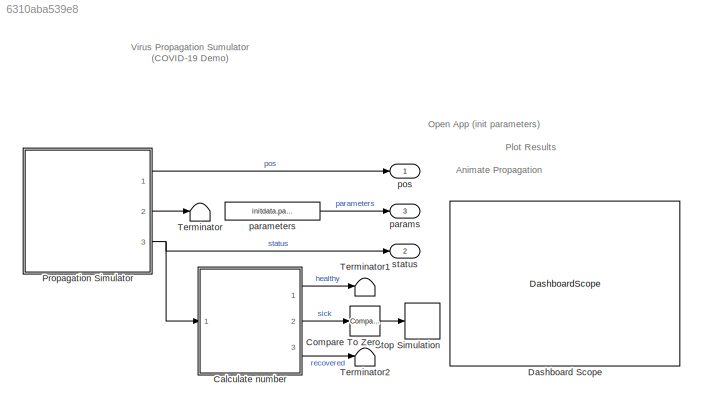
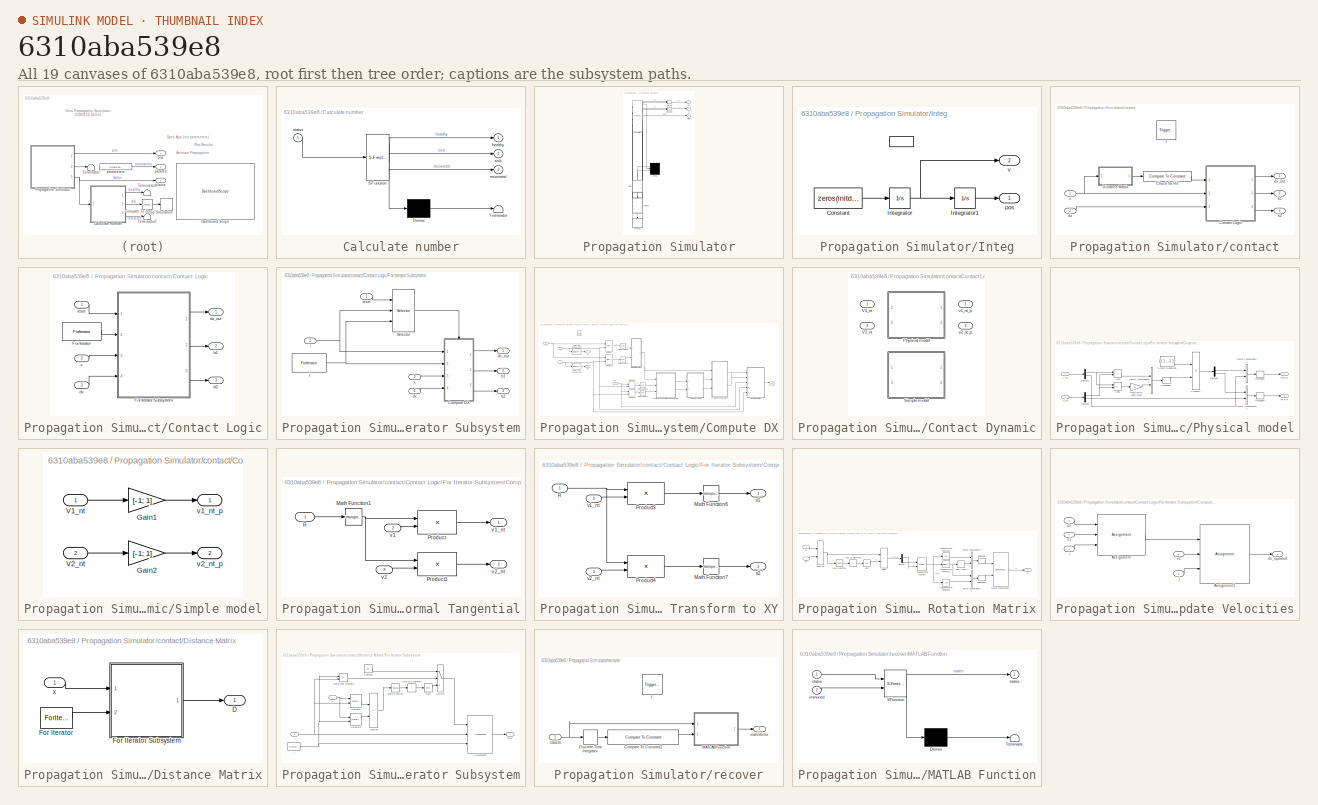
[diagram: thumbnail index - all 19 canvases of the model, root first then tree order]
MODEL slx_6310aba539e8
KIND model
CONFIG AbsTol = auto
CONFIG EnableMultiTasking = off
CONFIG FixedStep = auto
CONFIG InitFcn = load parametersBusData
CONFIG MaxStep = auto
CONFIG MinStep = auto
CONFIG RelTol = 1e-3
CONFIG SampleTimeConstraint = Unconstrained
CONFIG SolverName = VariableStepAuto
CONFIG StartTime = 0.0
CONFIG StopTime = 10.0
BLOCK [SubSystem] Calculate number
  ErrorFcn = Stateflow.Translate.translate
  PermitHierarchicalResolution = ExplicitOnly
  Ports = [1, 3]
  RequestExecContextInheritance = off
  SFBlockType = MATLAB Function
  TreatAsAtomicUnit = on
BLOCK [Demux] Calculate number/ Demux 
  Outputs = 1
  Ports = [1, 1]
BLOCK [S-Function] Calculate number/ SFunction 
  EnableBusSupport = on
  FunctionName = sf_sfun
  PortCounts = [1 4]
  Ports = [1, 4]
  SFcnIsStateOwnerBlock = off
  SFunctionDeploymentMode = off
  Tag = Stateflow S-Function 1
BLOCK [Terminator] Calculate number/ Terminator 
BLOCK [Outport] Calculate number/healthy
BLOCK [Outport] Calculate number/recovered
  Port = 3
BLOCK [Outport] Calculate number/sick
  Port = 2
BLOCK [Inport] Calculate number/status
BLOCK [Reference] Compare To Zero  REF=simulink/Logic and Bit
Operations/Compare
To Zero
  Ports = [1, 1]
  SourceBlock = simulink/Logic and Bit\nOperations/Compare\nTo Zero
  SourceProductBaseCode = SL
  SourceType = Compare To Zero
BLOCK [DashboardScope] Dashboard Scope
  Ymax = 100
  Ymin = 0
BLOCK [SubSystem] Propagation Simulator
  ErrorFcn = Stateflow.Translate.translate
  PermitHierarchicalResolution = ExplicitOnly
  Ports = [0, 3]
  RequestExecContextInheritance = off
  SFBlockType = Chart
  TreatAsAtomicUnit = on
BLOCK [Demux] Propagation Simulator/ Demux 
  Outputs = 2
  Ports = [1, 2]
BLOCK [Merge] Propagation Simulator/ Merge 
  Ports = [2, 1]
BLOCK [Merge] Propagation Simulator/ Merge 1
  Ports = [2, 1]
BLOCK [S-Function] Propagation Simulator/ SFunction 
  EnableBusSupport = on
  FunctionName = sf_sfun
  Parameters = initdata
  PortCounts = [4 7]
  Ports = [4, 7]
  SFcnIsStateOwnerBlock = off
  SFunctionDeploymentMode = off
  Tag = Stateflow S-Function 3
BLOCK [SubSystem] Propagation Simulator/Integ
  Ports = [0, 2, 0, 0, 0, 0, 0, 1]
  PreDeleteFcn = Stateflow.SLINSF.SimulinkMan.removePreDeleteFcn
  RequestExecContextInheritance = off
  UndoDeleteFcn = Stateflow.SLINSF.SimulinkMan.restorePreDeleteFcn
BLOCK [ActionPort] Propagation Simulator/Integ/ 
  CopyFcn = Stateflow.SLINSF.SimulinkMan.removeBlockPreDeleteFcn
  PreDeleteFcn = Stateflow.SLINSF.SimulinkMan.unsafePredeleteFcn
BLOCK [Constant] Propagation Simulator/Integ/Constant
  Value = zeros(initdata.parameters.N,2)
BLOCK [Integrator] Propagation Simulator/Integ/Integrator
  ContinuousStateAttributes = 'v0'
  Ports = [1, 1]
BLOCK [Integrator] Propagation Simulator/Integ/Integrator1
  ContinuousStateAttributes = 'pos0'
  Ports = [1, 1]
BLOCK [Outport] Propagation Simulator/Integ/pos
  OutDataTypeStr = double
  PortDimensions = [initdata.parameters.N 2]
  SignalType = real
  VarSizeSig = No
  VectorParamsAs1DForOutWhenUnconnected = off
BLOCK [Outport] Propagation Simulator/Integ/v
  OutDataTypeStr = double
  Port = 2
  PortDimensions = [initdata.parameters.N 2]
  SignalType = real
  VarSizeSig = No
  VectorParamsAs1DForOutWhenUnconnected = off
BLOCK [SubSystem] Propagation Simulator/contact
  Ports = [2, 3, 0, 1]
  PreDeleteFcn = Stateflow.SLINSF.SimulinkMan.removePreDeleteFcn
  RequestExecContextInheritance = off
  UndoDeleteFcn = Stateflow.SLINSF.SimulinkMan.restorePreDeleteFcn
BLOCK [Reference] Propagation Simulator/contact/Check for Hit  REF=simulink/Logic and Bit
Operations/Compare
To Constant
  Ports = [1, 1]
  SourceBlock = simulink/Logic and Bit\nOperations/Compare\nTo Constant
  SourceProductBaseCode = SL
  SourceType = Compare To Constant
BLOCK [SubSystem] Propagation Simulator/contact/Contact Logic
  Ports = [3, 3]
  RequestExecContextInheritance = off
  TreatAsAtomicUnit = on
BLOCK [ForIterator] Propagation Simulator/contact/Contact Logic/For Iterator
  IterationLimit = initdata.parameters.N
  Ports = [0, 1]
  ResetStates = reset
BLOCK [SubSystem] Propagation Simulator/contact/Contact Logic/For Iterator Subsystem
  Ports = [4, 3]
  RequestExecContextInheritance = off
  TreatAsAtomicUnit = on
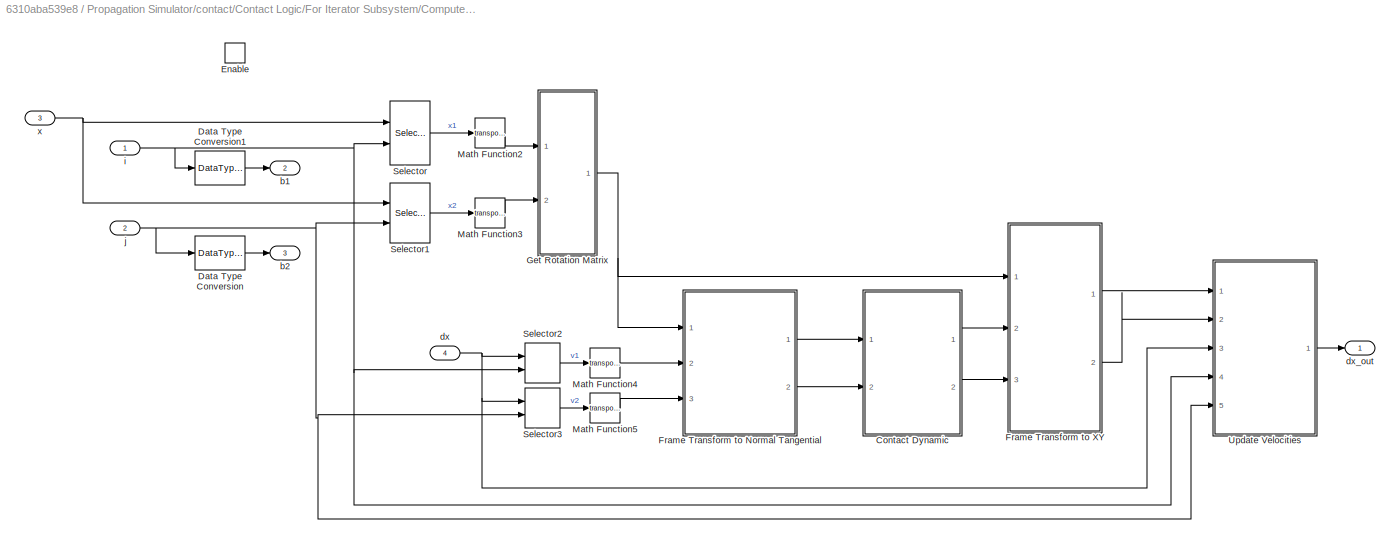
BLOCK [SubSystem] Propagation Simulator/contact/Contact Logic/For Iterator Subsystem/Compute DX
  Ports = [4, 3, 1]
  RequestExecContextInheritance = off
BLOCK [SubSystem] Propagation Simulator/contact/Contact Logic/For Iterator Subsystem/Compute DX/Contact Dynamic
  LabelModeActiveChoice = Simple
  Ports = [2, 2]
  RequestExecContextInheritance = off
  Variant = on
  VariantControl = Choice
  VariantControlMode = label
BLOCK [SubSystem] Propagation Simulator/contact/Contact Logic/For Iterator Subsystem/Compute DX/Contact Dynamic/Physical model
  Ports = [2, 2]
  RequestExecContextInheritance = off
  VariantControl = Physical
BLOCK [Sum] Propagation Simulator/contact/Contact Logic/For Iterator Subsystem/Compute DX/Contact Dynamic/Physical model/Add
  IconShape = rectangular
  Ports = [2, 1]
BLOCK [Sum] Propagation Simulator/contact/Contact Logic/For Iterator Subsystem/Compute DX/Contact Dynamic/Physical model/Add1
  IconShape = rectangular
  Inputs = +-
  Ports = [2, 1]
BLOCK [Demux] Propagation Simulator/contact/Contact Logic/For Iterator Subsystem/Compute DX/Contact Dynamic/Physical model/Demux1
  Outputs = 2
  Ports = [1, 2]
BLOCK [Demux] Propagation Simulator/contact/Contact Logic/For Iterator Subsystem/Compute DX/Contact Dynamic/Physical model/Demux2
  Outputs = 2
  Ports = [1, 2]
BLOCK [Demux] Propagation Simulator/contact/Contact Logic/For Iterator Subsystem/Compute DX/Contact Dynamic/Physical model/Demux3
  Outputs = 2
  Ports = [1, 2]
BLOCK [Product] Propagation Simulator/contact/Contact Logic/For Iterator Subsystem/Compute DX/Contact Dynamic/Physical model/Product2
  Inputs = /*
  Multiplication = Matrix(*)
  Ports = [2, 1]
BLOCK [Reshape] Propagation Simulator/contact/Contact Logic/For Iterator Subsystem/Compute DX/Contact Dynamic/Physical model/Reshape2
  OutputDimensionality = Column vector (2-D)
  Ports = [1, 1]
BLOCK [Reshape] Propagation Simulator/contact/Contact Logic/For Iterator Subsystem/Compute DX/Contact Dynamic/Physical model/Reshape3
  OutputDimensionality = Column vector (2-D)
  Ports = [1, 1]
BLOCK [Reshape] Propagation Simulator/contact/Contact Logic/For Iterator Subsystem/Compute DX/Contact Dynamic/Physical model/Reshape4
  OutputDimensionality = Column vector (2-D)
  Ports = [1, 1]
BLOCK [Gain] Propagation Simulator/contact/Contact Logic/For Iterator Subsystem/Compute DX/Contact Dynamic/Physical model/Restitution coefficient
BLOCK [Constant] Propagation Simulator/contact/Contact Logic/For Iterator Subsystem/Compute DX/Contact Dynamic/Physical model/System Equations
  Value = [1 1 ; -1 1]
BLOCK [Inport] Propagation Simulator/contact/Contact Logic/For Iterator Subsystem/Compute DX/Contact Dynamic/Physical model/V1_nt
BLOCK [Inport] Propagation Simulator/contact/Contact Logic/For Iterator Subsystem/Compute DX/Contact Dynamic/Physical model/V2_nt
  Port = 2
BLOCK [Concatenate] Propagation Simulator/contact/Contact Logic/For Iterator Subsystem/Compute DX/Contact Dynamic/Physical model/Vector Concatenate2
  Ports = [2, 1]
BLOCK [Concatenate] Propagation Simulator/contact/Contact Logic/For Iterator Subsystem/Compute DX/Contact Dynamic/Physical model/Vector Concatenate3
  Ports = [2, 1]
BLOCK [Concatenate] Propagation Simulator/contact/Contact Logic/For Iterator Subsystem/Compute DX/Contact Dynamic/Physical model/Vector Concatenate4
  Ports = [2, 1]
BLOCK [Outport] Propagation Simulator/contact/Contact Logic/For Iterator Subsystem/Compute DX/Contact Dynamic/Physical model/v1_nt_p
  VectorParamsAs1DForOutWhenUnconnected = off
BLOCK [Outport] Propagation Simulator/contact/Contact Logic/For Iterator Subsystem/Compute DX/Contact Dynamic/Physical model/v2_nt_p
  Port = 2
  VectorParamsAs1DForOutWhenUnconnected = off
BLOCK [SubSystem] Propagation Simulator/contact/Contact Logic/For Iterator Subsystem/Compute DX/Contact Dynamic/Simple model
  Ports = [2, 2]
  RequestExecContextInheritance = off
  VariantControl = Simple
BLOCK [Gain] Propagation Simulator/contact/Contact Logic/For Iterator Subsystem/Compute DX/Contact Dynamic/Simple model/Gain1
  Gain = [-1; 1]
BLOCK [Gain] Propagation Simulator/contact/Contact Logic/For Iterator Subsystem/Compute DX/Contact Dynamic/Simple model/Gain2
  Gain = [-1; 1]
BLOCK [Inport] Propagation Simulator/contact/Contact Logic/For Iterator Subsystem/Compute DX/Contact Dynamic/Simple model/V1_nt
BLOCK [Inport] Propagation Simulator/contact/Contact Logic/For Iterator Subsystem/Compute DX/Contact Dynamic/Simple model/V2_nt
  Port = 2
BLOCK [Outport] Propagation Simulator/contact/Contact Logic/For Iterator Subsystem/Compute DX/Contact Dynamic/Simple model/v1_nt_p
  VectorParamsAs1DForOutWhenUnconnected = off
BLOCK [Outport] Propagation Simulator/contact/Contact Logic/For Iterator Subsystem/Compute DX/Contact Dynamic/Simple model/v2_nt_p
  Port = 2
  VectorParamsAs1DForOutWhenUnconnected = off
BLOCK [Inport] Propagation Simulator/contact/Contact Logic/For Iterator Subsystem/Compute DX/Contact Dynamic/V1_nt
BLOCK [Inport] Propagation Simulator/contact/Contact Logic/For Iterator Subsystem/Compute DX/Contact Dynamic/V2_nt
  Port = 2
BLOCK [Outport] Propagation Simulator/contact/Contact Logic/For Iterator Subsystem/Compute DX/Contact Dynamic/v1_nt_p
BLOCK [Outport] Propagation Simulator/contact/Contact Logic/For Iterator Subsystem/Compute DX/Contact Dynamic/v2_nt_p
  Port = 2
BLOCK [DataTypeConversion] Propagation Simulator/contact/Contact Logic/For Iterator Subsystem/Compute DX/Data Type Conversion
  OutDataTypeStr = double
  RndMeth = Floor
  SaturateOnIntegerOverflow = off
BLOCK [DataTypeConversion] Propagation Simulator/contact/Contact Logic/For Iterator Subsystem/Compute DX/Data Type Conversion1
  OutDataTypeStr = double
  RndMeth = Floor
  SaturateOnIntegerOverflow = off
BLOCK [EnablePort] Propagation Simulator/contact/Contact Logic/For Iterator Subsystem/Compute DX/Enable
  Ports = []
BLOCK [SubSystem] Propagation Simulator/contact/Contact Logic/For Iterator Subsystem/Compute DX/Frame Transform to Normal Tangential
  Ports = [3, 2]
  RequestExecContextInheritance = off
BLOCK [Math] Propagation Simulator/contact/Contact Logic/For Iterator Subsystem/Compute DX/Frame Transform to Normal Tangential/Math Function1
  Operator = transpose
  Ports = [1, 1]
  SignedPower = on
BLOCK [Product] Propagation Simulator/contact/Contact Logic/For Iterator Subsystem/Compute DX/Frame Transform to Normal Tangential/Product
  Multiplication = Matrix(*)
  Ports = [2, 1]
BLOCK [Product] Propagation Simulator/contact/Contact Logic/For Iterator Subsystem/Compute DX/Frame Transform to Normal Tangential/Product1
  Multiplication = Matrix(*)
  Ports = [2, 1]
BLOCK [Inport] Propagation Simulator/contact/Contact Logic/For Iterator Subsystem/Compute DX/Frame Transform to Normal Tangential/R
  NameLocation = top
BLOCK [Inport] Propagation Simulator/contact/Contact Logic/For Iterator Subsystem/Compute DX/Frame Transform to Normal Tangential/v1
  Port = 2
BLOCK [Outport] Propagation Simulator/contact/Contact Logic/For Iterator Subsystem/Compute DX/Frame Transform to Normal Tangential/v1_nt
  VectorParamsAs1DForOutWhenUnconnected = off
BLOCK [Inport] Propagation Simulator/contact/Contact Logic/For Iterator Subsystem/Compute DX/Frame Transform to Normal Tangential/v2
  Port = 3
BLOCK [Outport] Propagation Simulator/contact/Contact Logic/For Iterator Subsystem/Compute DX/Frame Transform to Normal Tangential/v2_nt
  Port = 2
  VectorParamsAs1DForOutWhenUnconnected = off
BLOCK [SubSystem] Propagation Simulator/contact/Contact Logic/For Iterator Subsystem/Compute DX/Frame Transform to XY
  Ports = [3, 2]
  RequestExecContextInheritance = off
BLOCK [Math] Propagation Simulator/contact/Contact Logic/For Iterator Subsystem/Compute DX/Frame Transform to XY/Math Function6
  Operator = transpose
  Ports = [1, 1]
  SignedPower = on
BLOCK [Math] Propagation Simulator/contact/Contact Logic/For Iterator Subsystem/Compute DX/Frame Transform to XY/Math Function7
  Operator = transpose
  Ports = [1, 1]
  SignedPower = on
BLOCK [Product] Propagation Simulator/contact/Contact Logic/For Iterator Subsystem/Compute DX/Frame Transform to XY/Product3
  Multiplication = Matrix(*)
  Ports = [2, 1]
BLOCK [Product] Propagation Simulator/contact/Contact Logic/For Iterator Subsystem/Compute DX/Frame Transform to XY/Product4
  Multiplication = Matrix(*)
  Ports = [2, 1]
BLOCK [Inport] Propagation Simulator/contact/Contact Logic/For Iterator Subsystem/Compute DX/Frame Transform to XY/R
BLOCK [Outport] Propagation Simulator/contact/Contact Logic/For Iterator Subsystem/Compute DX/Frame Transform to XY/v1
  VectorParamsAs1DForOutWhenUnconnected = off
BLOCK [Inport] Propagation Simulator/contact/Contact Logic/For Iterator Subsystem/Compute DX/Frame Transform to XY/v1_nt
  Port = 2
BLOCK [Outport] Propagation Simulator/contact/Contact Logic/For Iterator Subsystem/Compute DX/Frame Transform to XY/v2
  Port = 2
  VectorParamsAs1DForOutWhenUnconnected = off
BLOCK [Inport] Propagation Simulator/contact/Contact Logic/For Iterator Subsystem/Compute DX/Frame Transform to XY/v2_nt
  Port = 3
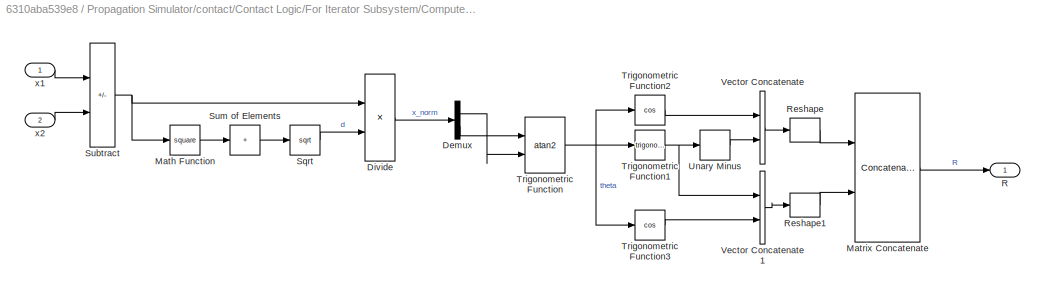
BLOCK [SubSystem] Propagation Simulator/contact/Contact Logic/For Iterator Subsystem/Compute DX/Get Rotation Matrix
  Ports = [2, 1]
  RequestExecContextInheritance = off
BLOCK [Demux] Propagation Simulator/contact/Contact Logic/For Iterator Subsystem/Compute DX/Get Rotation Matrix/Demux
  Outputs = 2
  Ports = [1, 2]
BLOCK [Product] Propagation Simulator/contact/Contact Logic/For Iterator Subsystem/Compute DX/Get Rotation Matrix/Divide
  Inputs = */
  Ports = [2, 1]
BLOCK [Math] Propagation Simulator/contact/Contact Logic/For Iterator Subsystem/Compute DX/Get Rotation Matrix/Math Function
  Operator = square
  Ports = [1, 1]
  SignedPower = on
BLOCK [Concatenate] Propagation Simulator/contact/Contact Logic/For Iterator Subsystem/Compute DX/Get Rotation Matrix/Matrix Concatenate
  Mode = Multidimensional array
  Ports = [2, 1]
BLOCK [Outport] Propagation Simulator/contact/Contact Logic/For Iterator Subsystem/Compute DX/Get Rotation Matrix/R
  VectorParamsAs1DForOutWhenUnconnected = off
BLOCK [Reshape] Propagation Simulator/contact/Contact Logic/For Iterator Subsystem/Compute DX/Get Rotation Matrix/Reshape
  OutputDimensionality = Row vector (2-D)
  Ports = [1, 1]
BLOCK [Reshape] Propagation Simulator/contact/Contact Logic/For Iterator Subsystem/Compute DX/Get Rotation Matrix/Reshape1
  OutputDimensionality = Row vector (2-D)
  Ports = [1, 1]
BLOCK [Sqrt] Propagation Simulator/contact/Contact Logic/For Iterator Subsystem/Compute DX/Get Rotation Matrix/Sqrt
BLOCK [Sum] Propagation Simulator/contact/Contact Logic/For Iterator Subsystem/Compute DX/Get Rotation Matrix/Subtract
  IconShape = rectangular
  Inputs = -+
  Ports = [2, 1]
BLOCK [Sum] Propagation Simulator/contact/Contact Logic/For Iterator Subsystem/Compute DX/Get Rotation Matrix/Sum of Elements
  IconShape = rectangular
  Inputs = +
  Ports = [1, 1]
BLOCK [Trigonometry] Propagation Simulator/contact/Contact Logic/For Iterator Subsystem/Compute DX/Get Rotation Matrix/Trigonometric Function
  Operator = atan2
  Ports = [2, 1]
BLOCK [Trigonometry] Propagation Simulator/contact/Contact Logic/For Iterator Subsystem/Compute DX/Get Rotation Matrix/Trigonometric Function1
  Ports = [1, 1]
BLOCK [Trigonometry] Propagation Simulator/contact/Contact Logic/For Iterator Subsystem/Compute DX/Get Rotation Matrix/Trigonometric Function2
  Operator = cos
  Ports = [1, 1]
BLOCK [Trigonometry] Propagation Simulator/contact/Contact Logic/For Iterator Subsystem/Compute DX/Get Rotation Matrix/Trigonometric Function3
  Operator = cos
  Ports = [1, 1]
BLOCK [UnaryMinus] Propagation Simulator/contact/Contact Logic/For Iterator Subsystem/Compute DX/Get Rotation Matrix/Unary Minus
BLOCK [Concatenate] Propagation Simulator/contact/Contact Logic/For Iterator Subsystem/Compute DX/Get Rotation Matrix/Vector Concatenate
  Ports = [2, 1]
BLOCK [Concatenate] Propagation Simulator/contact/Contact Logic/For Iterator Subsystem/Compute DX/Get Rotation Matrix/Vector Concatenate1
  Ports = [2, 1]
BLOCK [Inport] Propagation Simulator/contact/Contact Logic/For Iterator Subsystem/Compute DX/Get Rotation Matrix/x1
BLOCK [Inport] Propagation Simulator/contact/Contact Logic/For Iterator Subsystem/Compute DX/Get Rotation Matrix/x2
  Port = 2
BLOCK [Math] Propagation Simulator/contact/Contact Logic/For Iterator Subsystem/Compute DX/Math Function2
  Operator = transpose
  Ports = [1, 1]
  SignedPower = on
BLOCK [Math] Propagation Simulator/contact/Contact Logic/For Iterator Subsystem/Compute DX/Math Function3
  Operator = transpose
  Ports = [1, 1]
  SignedPower = on
BLOCK [Math] Propagation Simulator/contact/Contact Logic/For Iterator Subsystem/Compute DX/Math Function4
  Operator = transpose
  Ports = [1, 1]
  SignedPower = on
BLOCK [Math] Propagation Simulator/contact/Contact Logic/For Iterator Subsystem/Compute DX/Math Function5
  Operator = transpose
  Ports = [1, 1]
  SignedPower = on
BLOCK [Selector] Propagation Simulator/contact/Contact Logic/For Iterator Subsystem/Compute DX/Selector
  IndexOptions = Index vector (port),Select all
  Indices = [1 3],1
  InputPortWidth = 3
  NumberOfDimensions = 2
  OutputSizes = 1,1
  Ports = [2, 1]
BLOCK [Selector] Propagation Simulator/contact/Contact Logic/For Iterator Subsystem/Compute DX/Selector1
  IndexOptions = Index vector (port),Select all
  Indices = [1 3],1
  InputPortWidth = 3
  NumberOfDimensions = 2
  OutputSizes = 1,1
  Ports = [2, 1]
BLOCK [Selector] Propagation Simulator/contact/Contact Logic/For Iterator Subsystem/Compute DX/Selector2
  IndexOptions = Index vector (port),Select all
  Indices = [1 3],1
  InputPortWidth = 3
  NumberOfDimensions = 2
  OutputSizes = 1,1
  Ports = [2, 1]
BLOCK [Selector] Propagation Simulator/contact/Contact Logic/For Iterator Subsystem/Compute DX/Selector3
  IndexOptions = Index vector (port),Select all
  Indices = [1 3],1
  InputPortWidth = 3
  NumberOfDimensions = 2
  OutputSizes = 1,1
  Ports = [2, 1]
BLOCK [SubSystem] Propagation Simulator/contact/Contact Logic/For Iterator Subsystem/Compute DX/Update Velocities
  Ports = [5, 1]
  RequestExecContextInheritance = off
BLOCK [Assignment] Propagation Simulator/contact/Contact Logic/For Iterator Subsystem/Compute DX/Update Velocities/Assignment
  IndexOptions = Index vector (port),Assign all
  Indices = 1,1
  NumberOfDimensions = 2
  OutputSizes = 1,1
  Ports = [3, 1]
BLOCK [Assignment] Propagation Simulator/contact/Contact Logic/For Iterator Subsystem/Compute DX/Update Velocities/Assignment1
  IndexOptions = Index vector (port),Assign all
  Indices = 1,1
  NumberOfDimensions = 2
  OutputSizes = 1,1
  Ports = [3, 1]
BLOCK [Inport] Propagation Simulator/contact/Contact Logic/For Iterator Subsystem/Compute DX/Update Velocities/dx
  Port = 3
BLOCK [Outport] Propagation Simulator/contact/Contact Logic/For Iterator Subsystem/Compute DX/Update Velocities/dx_updated
  VectorParamsAs1DForOutWhenUnconnected = off
BLOCK [Inport] Propagation Simulator/contact/Contact Logic/For Iterator Subsystem/Compute DX/Update Velocities/i
  Port = 4
BLOCK [Inport] Propagation Simulator/contact/Contact Logic/For Iterator Subsystem/Compute DX/Update Velocities/j
  Port = 5
BLOCK [Inport] Propagation Simulator/contact/Contact Logic/For Iterator Subsystem/Compute DX/Update Velocities/v1
BLOCK [Inport] Propagation Simulator/contact/Contact Logic/For Iterator Subsystem/Compute DX/Update Velocities/v2
  Port = 2
BLOCK [Outport] Propagation Simulator/contact/Contact Logic/For Iterator Subsystem/Compute DX/b1
  Port = 2
BLOCK [Outport] Propagation Simulator/contact/Contact Logic/For Iterator Subsystem/Compute DX/b2
  Port = 3
BLOCK [Inport] Propagation Simulator/contact/Contact Logic/For Iterator Subsystem/Compute DX/dx
  Port = 4
BLOCK [Outport] Propagation Simulator/contact/Contact Logic/For Iterator Subsystem/Compute DX/dx_out
  VectorParamsAs1DForOutWhenUnconnected = off
BLOCK [Inport] Propagation Simulator/contact/Contact Logic/For Iterator Subsystem/Compute DX/i
BLOCK [Inport] Propagation Simulator/contact/Contact Logic/For Iterator Subsystem/Compute DX/j
  Port = 2
BLOCK [Inport] Propagation Simulator/contact/Contact Logic/For Iterator Subsystem/Compute DX/x
  Port = 3
BLOCK [Selector] Propagation Simulator/contact/Contact Logic/For Iterator Subsystem/Selector
  IndexOptions = Index vector (port),Index vector (port)
  Indices = [1 3],1
  InputPortWidth = 3
  NumberOfDimensions = 2
  OutputSizes = 1,1
  Ports = [3, 1]
BLOCK [Outport] Propagation Simulator/contact/Contact Logic/For Iterator Subsystem/b1
  Port = 2
BLOCK [Outport] Propagation Simulator/contact/Contact Logic/For Iterator Subsystem/b2
  Port = 3
BLOCK [Inport] Propagation Simulator/contact/Contact Logic/For Iterator Subsystem/dx
  Port = 4
BLOCK [Outport] Propagation Simulator/contact/Contact Logic/For Iterator Subsystem/dx_out
  VectorParamsAs1DForOutWhenUnconnected = off
BLOCK [Inport] Propagation Simulator/contact/Contact Logic/For Iterator Subsystem/i
  Port = 2
BLOCK [ForIterator] Propagation Simulator/contact/Contact Logic/For Iterator Subsystem/j
  IterationLimit = initdata.parameters.N
  Ports = [0, 1]
BLOCK [Inport] Propagation Simulator/contact/Contact Logic/For Iterator Subsystem/reset
BLOCK [Inport] Propagation Simulator/contact/Contact Logic/For Iterator Subsystem/x
  Port = 3
BLOCK [Outport] Propagation Simulator/contact/Contact Logic/b1
  Port = 2
BLOCK [Outport] Propagation Simulator/contact/Contact Logic/b2
  Port = 3
BLOCK [Inport] Propagation Simulator/contact/Contact Logic/dx
  Port = 3
BLOCK [Outport] Propagation Simulator/contact/Contact Logic/dx_out
  VectorParamsAs1DForOutWhenUnconnected = off
BLOCK [Inport] Propagation Simulator/contact/Contact Logic/reset
BLOCK [Inport] Propagation Simulator/contact/Contact Logic/x
  Port = 2
BLOCK [SubSystem] Propagation Simulator/contact/Distance Matrix
  Ports = [1, 1]
  RequestExecContextInheritance = off
  TreatAsAtomicUnit = on
BLOCK [Outport] Propagation Simulator/contact/Distance Matrix/D
  VectorParamsAs1DForOutWhenUnconnected = off
BLOCK [ForIterator] Propagation Simulator/contact/Distance Matrix/For Iterator
  IterationLimit = initdata.parameters.N
  Ports = [0, 1]
  ResetStates = reset
BLOCK [SubSystem] Propagation Simulator/contact/Distance Matrix/For Iterator Subsystem
  Ports = [2, 1]
  RequestExecContextInheritance = off
  TreatAsAtomicUnit = on
BLOCK [Assignment] Propagation Simulator/contact/Distance Matrix/For Iterator Subsystem/Assignment
  IndexOptions = Index vector (port),Index vector (port)
  Indices = 1,1
  NumberOfDimensions = 2
  OutputInitialize = Specify size for each dimension in table
  OutputSizes = initdata.parameters.N,initdata.parameters.N
  Ports = [3, 1]
BLOCK [Constant] Propagation Simulator/contact/Distance Matrix/For Iterator Subsystem/Constant
  Value = inf
BLOCK [Math] Propagation Simulator/contact/Distance Matrix/For Iterator Subsystem/Math Function
  Operator = square
  Ports = [1, 1]
  SignedPower = on
BLOCK [Outport] Propagation Simulator/contact/Distance Matrix/For Iterator Subsystem/Out1
  VectorParamsAs1DForOutWhenUnconnected = off
BLOCK [RelationalOperator] Propagation Simulator/contact/Distance Matrix/For Iterator Subsystem/Relational Operator
  InputSameDT = off
  Operator = <=
  OutDataTypeStr = boolean
  Ports = [2, 1]
BLOCK [Selector] Propagation Simulator/contact/Distance Matrix/For Iterator Subsystem/Selector
  IndexOptions = Index vector (port),Select all
  Indices = [1 3],1
  InputPortWidth = 3
  NumberOfDimensions = 2
  OutputSizes = 1,1
  Ports = [2, 1]
BLOCK [Selector] Propagation Simulator/contact/Distance Matrix/For Iterator Subsystem/Selector1
  IndexOptions = Index vector (port),Select all
  Indices = [1 3],1
  InputPortWidth = 3
  NumberOfDimensions = 2
  OutputSizes = 1,1
  Ports = [2, 1]
BLOCK [Sqrt] Propagation Simulator/contact/Distance Matrix/For Iterator Subsystem/Sqrt
BLOCK [Sum] Propagation Simulator/contact/Distance Matrix/For Iterator Subsystem/Subtract
  IconShape = rectangular
  Inputs = +-
  Ports = [2, 1]
BLOCK [Sum] Propagation Simulator/contact/Distance Matrix/For Iterator Subsystem/Sum of Elements
  IconShape = rectangular
  Inputs = +
  Ports = [1, 1]
BLOCK [Switch] Propagation Simulator/contact/Distance Matrix/For Iterator Subsystem/Switch
  Criteria = u2 ~= 0
  InputSameDT = off
  SaturateOnIntegerOverflow = off
BLOCK [Inport] Propagation Simulator/contact/Distance Matrix/For Iterator Subsystem/i
  Port = 2
BLOCK [ForIterator] Propagation Simulator/contact/Distance Matrix/For Iterator Subsystem/j
  IterationLimit = initdata.parameters.N
  Ports = [0, 1]
BLOCK [Inport] Propagation Simulator/contact/Distance Matrix/For Iterator Subsystem/x
BLOCK [Inport] Propagation Simulator/contact/Distance Matrix/x
BLOCK [Outport] Propagation Simulator/contact/b1
  Port = 2
BLOCK [Outport] Propagation Simulator/contact/b2
  Port = 3
BLOCK [Inport] Propagation Simulator/contact/dx
  OutDataTypeStr = double
  Port = 2
  PortDimensions = [initdata.parameters.N 2]
  SignalType = real
  VarSizeSig = No
BLOCK [Outport] Propagation Simulator/contact/dx_out
  VectorParamsAs1DForOutWhenUnconnected = off
BLOCK [TriggerPort] Propagation Simulator/contact/f
  CopyFcn = Stateflow.SLINSF.SimulinkMan.removeBlockPreDeleteFcn
  Ports = []
  PreDeleteFcn = Stateflow.SLINSF.SimulinkMan.unsafePredeleteFcn
  StatesWhenEnabling = held
  TriggerType = function-call
  VariantControl = (inherit)
BLOCK [Inport] Propagation Simulator/contact/x
  OutDataTypeStr = double
  PortDimensions = [initdata.parameters.N 2]
  SignalType = real
  VarSizeSig = No
BLOCK [Outport] Propagation Simulator/pos
  VectorParamsAs1DForOutWhenUnconnected = off
BLOCK [SubSystem] Propagation Simulator/recover
  Ports = [1, 1, 0, 1]
  PreDeleteFcn = Stateflow.SLINSF.SimulinkMan.removePreDeleteFcn
  RequestExecContextInheritance = off
  UndoDeleteFcn = Stateflow.SLINSF.SimulinkMan.restorePreDeleteFcn
BLOCK [Reference] Propagation Simulator/recover/Compare To Constant2  REF=simulink/Logic and Bit
Operations/Compare
To Constant
  Ports = [1, 1]
  SourceBlock = simulink/Logic and Bit\nOperations/Compare\nTo Constant
  SourceProductBaseCode = SL
  SourceType = Compare To Constant
BLOCK [DiscreteIntegrator] Propagation Simulator/recover/Discrete-Time Integrator
  ICPrevOutput = DiscIntNeverNeededParam
  ICPrevScaledInput = DiscIntNeverNeededParam
  InitialConditionSetting = Auto
  Ports = [1, 1]
  SampleTime = -1
BLOCK [SubSystem] Propagation Simulator/recover/MATLAB Function
  ErrorFcn = Stateflow.Translate.translate
  PermitHierarchicalResolution = ExplicitOnly
  Ports = [2, 1]
  RequestExecContextInheritance = off
  SFBlockType = MATLAB Function
  TreatAsAtomicUnit = on
BLOCK [Demux] Propagation Simulator/recover/MATLAB Function/ Demux 
  Outputs = 1
  Ports = [1, 1]
BLOCK [S-Function] Propagation Simulator/recover/MATLAB Function/ SFunction 
  EnableBusSupport = off
  FunctionName = sf_sfun
  PortCounts = [2 2]
  Ports = [2, 2]
  SFcnIsStateOwnerBlock = off
  SFunctionDeploymentMode = off
  Tag = Stateflow S-Function 5
BLOCK [Terminator] Propagation Simulator/recover/MATLAB Function/ Terminator 
BLOCK [Inport] Propagation Simulator/recover/MATLAB Function/immuned
  Port = 2
BLOCK [Outport] Propagation Simulator/recover/MATLAB Function/states
BLOCK [Inport] Propagation Simulator/recover/MATLAB Function/states 
BLOCK [TriggerPort] Propagation Simulator/recover/f
  CopyFcn = Stateflow.SLINSF.SimulinkMan.removeBlockPreDeleteFcn
  Ports = []
  PreDeleteFcn = Stateflow.SLINSF.SimulinkMan.unsafePredeleteFcn
  StatesWhenEnabling = held
  TriggerType = function-call
  VariantControl = (inherit)
BLOCK [Inport] Propagation Simulator/recover/stateIn
  OutDataTypeStr = double
  PortDimensions = initdata.parameters.N
  SignalType = real
  VarSizeSig = No
BLOCK [Outport] Propagation Simulator/recover/stateVector
BLOCK [Outport] Propagation Simulator/status
  Port = 3
BLOCK [Outport] Propagation Simulator/v
  Port = 2
  VectorParamsAs1DForOutWhenUnconnected = off
BLOCK [Stop] Stop Simulation
BLOCK [Terminator] Terminator
BLOCK [Terminator] Terminator1
BLOCK [Terminator] Terminator2
BLOCK [Constant] parameters
  OutDataTypeStr = Bus: parametersBus
  Value = initdata.parameters
BLOCK [Outport] params
  OutDataTypeStr = Bus: parametersBus
  Port = 3
  VectorParamsAs1DForOutWhenUnconnected = off
BLOCK [Outport] pos
  VectorParamsAs1DForOutWhenUnconnected = off
BLOCK [Outport] status
  Port = 2
  VectorParamsAs1DForOutWhenUnconnected = off
ANNOTATION (root): Virus Propagation Sumulator (COVID-19 Demo)
ANNOTATION (root): Animate Propagation
ANNOTATION (root): Open App (init parameters)
ANNOTATION (root): Plot Results
LINE Calculate number:1 -> Terminator1:1
LINE Calculate number:2 -> Compare To Zero:1
LINE Calculate number:3 -> Terminator2:1
LINE Compare To Zero:1 -> Stop Simulation:1
LINE Propagation Simulator:1 -> pos:1
LINE Propagation Simulator:2 -> Terminator:1
NET Propagation Simulator:3 -> Calculate number:1, status:1
LINE parameters:1 -> params:1
note: NET lines group one-source signal fan-out (src -> all destinations, sorted); 1:1 wires keep LINE
CHART Calculate number states=1 transitions=1
  STATE_LABEL 'eML_blk_kernel()'
  STATE_LABEL 'SCRIPT:\nfunction [healthy, sick, recovered] = calc_num(status)\nhealthy = nnz(status == 0);\nsick = nnz(status == 1);\nrecovered = nnz(status == 2);\n'
CHART Propagation Simulator states=8 transitions=15
  STATE_LABEL 'hit = detectHit(xx,dxx)'
  STATE_LABEL 'SCRIPT:\nfunction hit = detectHit(xx,dxx)\n    hit = false;\n    for i=1:size(xx, 1)\n        % Check if two balls hit        \n        for j=1:(i-1)\n            dxxL = xx(i,1) - xx(j,1);\n            dyy = xx(i,2) - xx(j,2);\n            if sqrt(dxxL^2 + dyy^2) <= R\n                hit = true;\n                return;\n            end\n        end\n    end\nend\n \n'
  STATE_LABEL 'Integ'
  STATE_LABEL '[dx_out,b1,b2] = contact(x,dx)'
  STATE_LABEL 'hitWall = detectHitWall(xx,dxx)'
  STATE_LABEL 'SCRIPT:\nfunction hitWall = detectHitWall(xx,dxx)\n\nhitWall = false;\nfor i=1:size(xx, 1)\n    % Check if hit the wall\n    if ((xx(i,1)>=L/2-R/2 && dxx(i,1)>0) ||...\n            (xx(i,1)<=-L/2+R/2 && dxx(i,1)<0) ||...\n            (xx(i,2)>=W/2-R/2 && dxx(i,2)>0) ||...\n            (xx(i,2)<=-W/2+R/2 && dxx(i,2)<0))\n        hitWall = true;\n        return;\n    end\nend\nend\n\n'
  STATE_LABEL 'statusLocal = updateStatus(statusLocal,bb1,bb2)'
  STATE_LABEL '%b1 is infected\n[statusLocal(bb1)==1]'
  STATE_LABEL '%b2 is not\n[statusLocal(bb2)==0]'
  STATE_LABEL '% Infect b2\n{statusLocal(bb2) = 1;}'
  STATE_LABEL '%b2 is infected\n[statusLocal(bb2)==1]'
  STATE_LABEL '%b1 is not\n[statusLocal(bb1)==0]'
  STATE_LABEL '% Infect b1\n{statusLocal(bb1) = 1;}'
  STATE_LABEL '{statusLocal = recover(statusLocal);}'
  STATE_LABEL 'dx_out = contactWall(xx,dxx)'
  STATE_LABEL 'SCRIPT:\nfunction dx_out = contactWall(xx,dxx)\ndx_out = dxx;\n\n[m,~] = size(dxx);\n\n% If a ball hit a wall, flip velocity sign\nfor i = 1:m\n    \n    if xx(i,1)>=L/2-R/2 && dxx(i,1)>0\n        dx_out(i,1) = -dxx(i,1);\n    end\n    \n    if xx(i,1)<=-L/2+R/2 && dxx(i,1)<0\n        dx_out(i,1) = -dxx(i,1);\n    end\n    \n    if xx(i,2)>=W/2-R/2 && dxx(i,2)>0\n        dx_out(i,2) = -dxx(i,2);\n    end\n    \n    if...<+86ch>'
  STATE_LABEL 'stateVector = recover(stateIn)'
  STATE_LABEL '<!DOCTYPE HTML PUBLIC "-//W3C//DTD HTML 4.0//EN" "http://www.w3.org/TR/REC-html40/strict.dtd">\n<html><head><meta name="qrichtext" content="1" /><style type="text/css">\np, li { white-space: pre-wrap; }\n</style></head><body align="left" style=" font-family:\'Helvetica\'; font-size:12px; font-weight:400; font-style:normal;">\n<p align="left" style=" margin-top:0px; margin-bottom:0px; margin-left:0px; ma...<+388ch>'
CHART Propagation Simulator/recover/MATLAB Function states=1 transitions=1
  STATE_LABEL 'eML_blk_kernel()'
  STATE_LABEL 'SCRIPT:\nfunction states= fcn(states, immuned)\nstates(immuned) = 2;\n\n'
CHART  states=0 transitions=0
CHART  states=0 transitions=0
CHART  states=0 transitions=0
